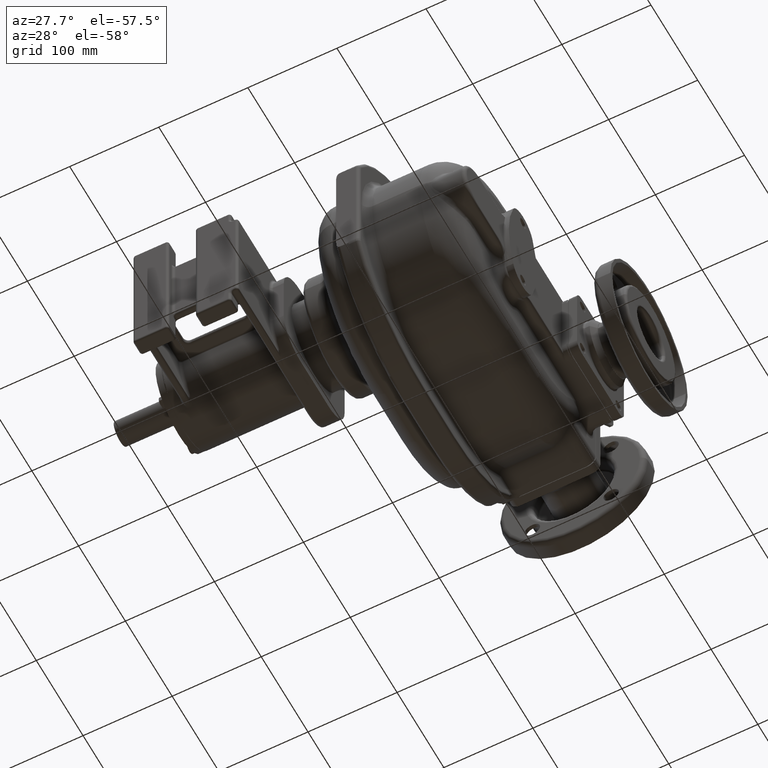
[diagram: clean part render]
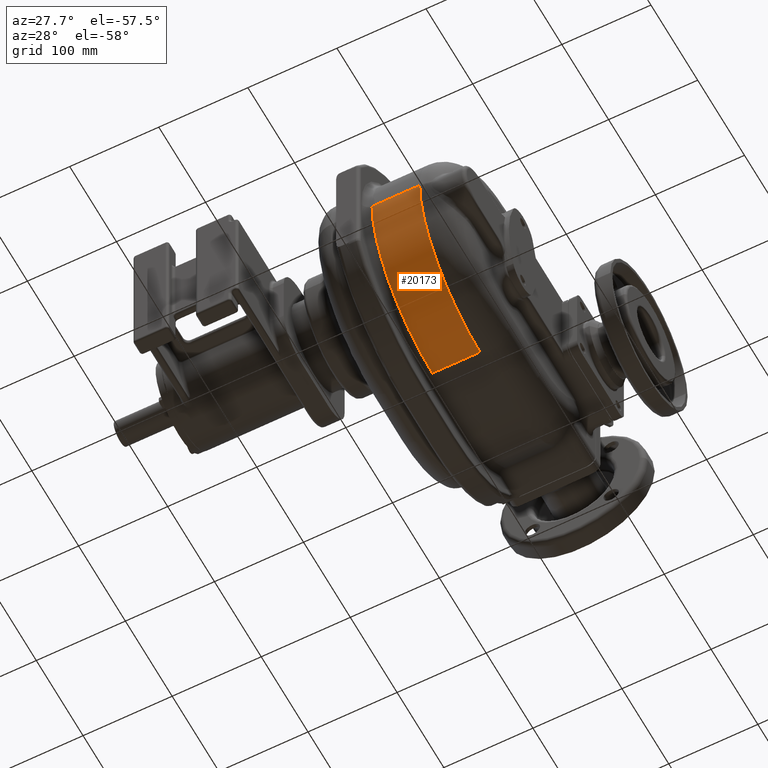
[diagram: same view with one face highlighted and labeled with its STEP entity id]
A machine part, auxiliary view. The second image highlights one B-rep face of the part: STEP entity #20173.
In plain terms, the highlighted cylindrical surface (partial cylindrical patch) has radius 129 mm, axis along (-1, 0, 0).
Its self-contained STEP definition (entity closure, byte-faithful):
#6176=DIRECTION('',(-1.E0,0.E0,0.E0));
#6177=VECTOR('',#6176,5.35E1);
#6178=CARTESIAN_POINT('',(4.8E1,-1.24E2,-4.999999999999E0));
#6179=LINE('',#6178,#6177);
#6180=DIRECTION('',(-1.E0,0.E0,0.E0));
#6181=VECTOR('',#6180,5.35E1);
#6182=CARTESIAN_POINT('',(4.8E1,5.E0,-1.34E2));
#6183=LINE('',#6182,#6181);
#6184=CARTESIAN_POINT('',(-5.5E0,5.E0,-5.E0));
#6185=DIRECTION('',(1.E0,0.E0,0.E0));
#6186=DIRECTION('',(0.E0,-1.E0,0.E0));
#6187=AXIS2_PLACEMENT_3D('',#6184,#6185,#6186);
#6189=CARTESIAN_POINT('',(4.8E1,5.E0,-5.E0));
#6190=DIRECTION('',(1.E0,0.E0,0.E0));
#6191=DIRECTION('',(0.E0,-1.E0,0.E0));
#6192=AXIS2_PLACEMENT_3D('',#6189,#6190,#6191);
#9901=CARTESIAN_POINT('',(4.8E1,5.E0,-1.34E2));
#9903=VERTEX_POINT('',#9901);
#9905=CARTESIAN_POINT('',(4.8E1,-1.24E2,-4.999999999999E0));
#9906=VERTEX_POINT('',#9905);
#10054=CARTESIAN_POINT('',(-5.5E0,-1.24E2,-4.999999999999E0));
#10055=VERTEX_POINT('',#10054);
#10058=CARTESIAN_POINT('',(-5.5E0,5.E0,-1.34E2));
#10059=VERTEX_POINT('',#10058);
#20161=CARTESIAN_POINT('',(-2.35E1,5.E0,-5.E0));
#20162=DIRECTION('',(-1.E0,0.E0,0.E0));
#20163=DIRECTION('',(0.E0,0.E0,1.E0));
#20164=AXIS2_PLACEMENT_3D('',#20161,#20162,#20163);
#20165=CYLINDRICAL_SURFACE('',#20164,1.29E2);
#20167=ORIENTED_EDGE('',*,*,#20166,.T.);
#20168=ORIENTED_EDGE('',*,*,#18007,.F.);
#20169=ORIENTED_EDGE('',*,*,#20156,.F.);
#20170=ORIENTED_EDGE('',*,*,#18681,.T.);
#20171=EDGE_LOOP('',(#20167,#20168,#20169,#20170));
#20172=FACE_OUTER_BOUND('',#20171,.F.);
#20173=ADVANCED_FACE('',(#20172),#20165,.T.);
#6188=CIRCLE('',#6187,1.29E2);
#6193=CIRCLE('',#6192,1.29E2);
#18007=EDGE_CURVE('',#10055,#10059,#6188,.T.);
#18681=EDGE_CURVE('',#9906,#9903,#6193,.T.);
#20156=EDGE_CURVE('',#9906,#10055,#6179,.T.);
#20166=EDGE_CURVE('',#9903,#10059,#6183,.T.);